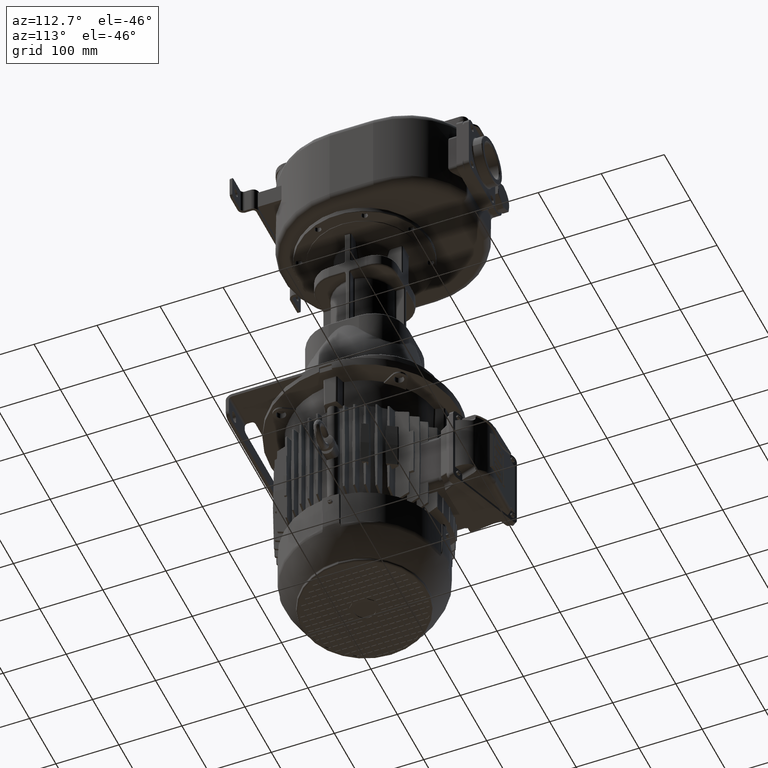
[diagram: clean part render]
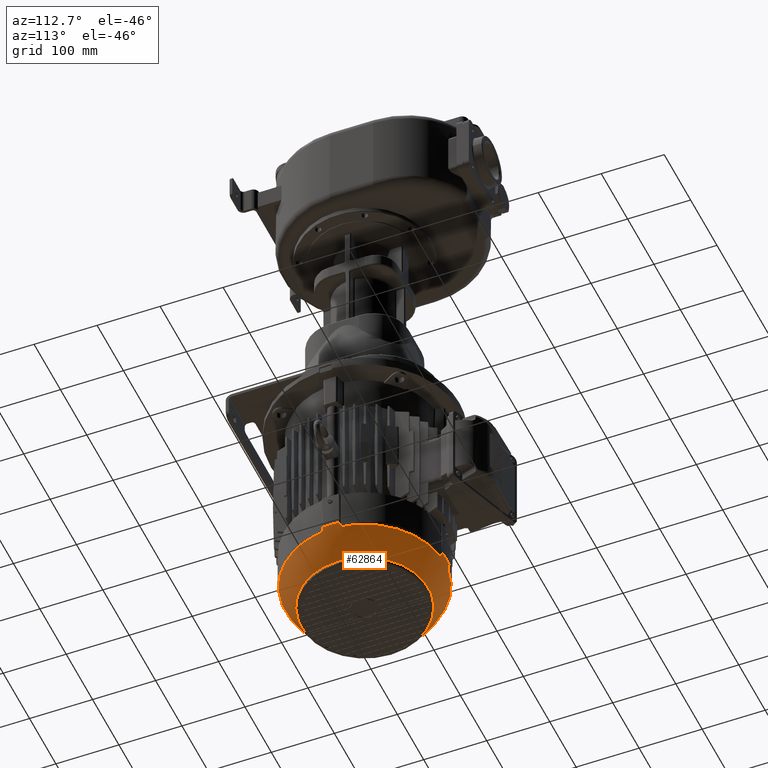
[diagram: same view with one face highlighted and labeled with its STEP entity id]
A machine part, auxiliary view. The second image highlights one B-rep face of the part: STEP entity #62864.
In plain terms, the highlighted spherical surface has radius 134.5 mm.
Its self-contained STEP definition (entity closure, byte-faithful):
#9132=CARTESIAN_POINT('',(-1.282834132325E2,1.188267666692E2,
-7.744111169062E2));
#9133=CARTESIAN_POINT('',(-1.282002467554E2,1.188032779781E2,
-7.746822287054E2));
#9134=CARTESIAN_POINT('',(-1.281156932223E2,1.187736879886E2,
-7.749527179533E2));
#9135=CARTESIAN_POINT('',(-1.280296044654E2,1.187363660330E2,
-7.752224832488E2));
#9147=CARTESIAN_POINT('',(-1.280296044654E2,1.187363660330E2,
-7.752224832488E2));
#9149=CARTESIAN_POINT('',(1.488929890106E1,6.307848742192E0,-7.816978132397E2));
#9150=CARTESIAN_POINT('',(1.475797575334E1,6.143682761572E0,-7.812872636904E2));
#9151=CARTESIAN_POINT('',(1.451431108738E1,5.837981104545E0,-7.805084317613E2));
#9152=CARTESIAN_POINT('',(1.420756427111E1,5.445937576495E0,-7.794765120899E2));
#9153=CARTESIAN_POINT('',(1.395436023710E1,5.108421879896E0,-7.785598535197E2));
#9154=CARTESIAN_POINT('',(1.374997824913E1,4.820240011737E0,-7.777539341787E2));
#9155=CARTESIAN_POINT('',(1.358631401536E1,4.571649370385E0,-7.770394914968E2));
#9156=CARTESIAN_POINT('',(1.345382668842E1,4.351181484607E0,-7.763893116339E2));
#9157=CARTESIAN_POINT('',(1.334646183621E1,4.151497309552E0,-7.757856018551E2));
#9158=CARTESIAN_POINT('',(1.328900516829E1,4.028918070158E0,-7.754058678131E2));
#9159=CARTESIAN_POINT('',(1.326363396698E1,3.970395534640E0,-7.752224832489E2));
#9161=CARTESIAN_POINT('',(4.014429639455E-14,1.32E2,-7.816978132150E2));
#9162=DIRECTION('',(0.E0,0.E0,-1.E0));
#9163=DIRECTION('',(9.930567840818E-1,-1.176359791441E-1,0.E0));
#9164=AXIS2_PLACEMENT_3D('',#9161,#9162,#9163);
#9166=CARTESIAN_POINT('',(1.280296044653E2,1.187363660330E2,-7.752224832490E2));
#9167=CARTESIAN_POINT('',(1.279813170097E2,1.187154320332E2,-7.753737954563E2));
#9168=CARTESIAN_POINT('',(1.278801050993E2,1.186686158745E2,-7.756879693491E2));
#9169=CARTESIAN_POINT('',(1.277151793851E2,1.185826955100E2,-7.761896229194E2));
#9170=CARTESIAN_POINT('',(1.275327307181E2,1.184775384041E2,-7.767330497952E2));
#9171=CARTESIAN_POINT('',(1.273269363894E2,1.183481157717E2,-7.773326205179E2));
#9172=CARTESIAN_POINT('',(1.270894901880E2,1.181870991755E2,-7.780082239755E2));
#9173=CARTESIAN_POINT('',(1.268139180149E2,1.179881589472E2,-7.787725362873E2));
#9174=CARTESIAN_POINT('',(1.264955331740E2,1.177470593127E2,-7.796318863222E2));
#9175=CARTESIAN_POINT('',(1.261281420352E2,1.174586476620E2,-7.805951826286E2));
#9176=CARTESIAN_POINT('',(1.258441381559E2,1.172322682235E2,-7.813177169736E2));
#9177=CARTESIAN_POINT('',(1.256921512578E2,1.171107010989E2,-7.816978132398E2));
#9179=CARTESIAN_POINT('',(3.941865825128E-14,1.32E2,-7.744111169063E2));
#9180=DIRECTION('',(0.E0,0.E0,-1.E0));
#9181=DIRECTION('',(9.947688696105E-1,1.021513389720E-1,0.E0));
#9182=AXIS2_PLACEMENT_3D('',#9179,#9180,#9181);
#9184=CARTESIAN_POINT('',(1.256921512578E2,1.468892989011E2,-7.816978132398E2));
#9185=CARTESIAN_POINT('',(1.258441381540E2,1.467677317780E2,-7.813177169783E2));
#9186=CARTESIAN_POINT('',(1.261281420365E2,1.465413523371E2,-7.805951826247E2));
#9187=CARTESIAN_POINT('',(1.264955331601E2,1.462529406977E2,-7.796318863600E2));
#9188=CARTESIAN_POINT('',(1.268139180869E2,1.460118409981E2,-7.787725360931E2));
#9189=CARTESIAN_POINT('',(1.270894903753E2,1.458129006906E2,-7.780082234535E2));
#9190=CARTESIAN_POINT('',(1.273269367100E2,1.456518840173E2,-7.773326195964E2));
#9191=CARTESIAN_POINT('',(1.275327309685E2,1.455224614460E2,-7.767330490559E2));
#9192=CARTESIAN_POINT('',(1.277151795381E2,1.454173044070E2,-7.761896224571E2));
#9193=CARTESIAN_POINT('',(1.278801051624E2,1.453313840939E2,-7.756879691543E2));
#9194=CARTESIAN_POINT('',(1.279813170287E2,1.452845679587E2,-7.753737953964E2));
#9195=CARTESIAN_POINT('',(1.280296044653E2,1.452636339670E2,-7.752224832490E2));
#9197=CARTESIAN_POINT('',(4.014429639455E-14,1.32E2,-7.816978132150E2));
#9198=DIRECTION('',(0.E0,0.E0,-1.E0));
#9199=DIRECTION('',(1.176359791437E-1,9.930567840818E-1,0.E0));
#9200=AXIS2_PLACEMENT_3D('',#9197,#9198,#9199);
#9202=CARTESIAN_POINT('',(1.326363396698E1,2.600296044654E2,-7.752224832489E2));
#9203=CARTESIAN_POINT('',(1.328900516330E1,2.599710819407E2,-7.754058677791E2));
#9204=CARTESIAN_POINT('',(1.334646181830E1,2.598485027306E2,-7.757856017313E2));
#9205=CARTESIAN_POINT('',(1.345382665285E1,2.596488185812E2,-7.763893114353E2));
#9206=CARTESIAN_POINT('',(1.358631389223E1,2.594283508288E2,-7.770394909139E2));
#9207=CARTESIAN_POINT('',(1.374997807424E1,2.591797602417E2,-7.777539334621E2));
#9208=CARTESIAN_POINT('',(1.395436013330E1,2.588915782596E2,-7.785598531386E2));
#9209=CARTESIAN_POINT('',(1.420756424192E1,2.585540624593E2,-7.794765119984E2));
#9210=CARTESIAN_POINT('',(1.451431117841E1,2.581620187811E2,-7.805084320585E2));
#9211=CARTESIAN_POINT('',(1.475797579623E1,2.578563171824E2,-7.812872638311E2));
#9212=CARTESIAN_POINT('',(1.488929890106E1,2.576921512578E2,-7.816978132397E2));
#9214=CARTESIAN_POINT('',(3.941865825128E-14,1.32E2,-7.744111169063E2));
#9215=DIRECTION('',(0.E0,0.E0,1.E0));
#9216=DIRECTION('',(1.021513389717E-1,9.947688696106E-1,0.E0));
#9217=AXIS2_PLACEMENT_3D('',#9214,#9215,#9216);
#9219=CARTESIAN_POINT('',(-1.488929890108E1,2.576921512578E2,
-7.816978132397E2));
#9220=CARTESIAN_POINT('',(-1.475797575318E1,2.578563172385E2,
-7.812872636901E2));
#9221=CARTESIAN_POINT('',(-1.451431108706E1,2.581620188957E2,
-7.805084317606E2));
#9222=CARTESIAN_POINT('',(-1.420756427082E1,2.585540624239E2,
-7.794765120889E2));
#9223=CARTESIAN_POINT('',(-1.395436023693E1,2.588915781205E2,
-7.785598535187E2));
#9224=CARTESIAN_POINT('',(-1.374997824896E1,2.591797599887E2,
-7.777539341774E2));
#9225=CARTESIAN_POINT('',(-1.358631401519E1,2.594283506301E2,
-7.770394914954E2));
#9226=CARTESIAN_POINT('',(-1.345382668830E1,2.596488185158E2,
-7.763893116327E2));
#9227=CARTESIAN_POINT('',(-1.334646183621E1,2.598485026907E2,
-7.757856018544E2));
#9228=CARTESIAN_POINT('',(-1.328900516828E1,2.599710819299E2,
-7.754058678129E2));
#9229=CARTESIAN_POINT('',(-1.326363396700E1,2.600296044654E2,
-7.752224832489E2));
#9231=CARTESIAN_POINT('',(4.014429639455E-14,1.32E2,-7.816978132150E2));
#9232=DIRECTION('',(0.E0,0.E0,-1.E0));
#9233=DIRECTION('',(-9.930567840818E-1,1.176359791440E-1,0.E0));
#9234=AXIS2_PLACEMENT_3D('',#9231,#9232,#9233);
#9236=CARTESIAN_POINT('',(-1.280296044654E2,1.452636339670E2,
-7.752224832488E2));
#9237=CARTESIAN_POINT('',(-1.279813170097E2,1.452845679668E2,
-7.753737954560E2));
#9238=CARTESIAN_POINT('',(-1.278801050994E2,1.453313841255E2,
-7.756879693489E2));
#9239=CARTESIAN_POINT('',(-1.277151793852E2,1.454173044900E2,
-7.761896229191E2));
#9240=CARTESIAN_POINT('',(-1.275327307182E2,1.455224615959E2,
-7.767330497949E2));
#9241=CARTESIAN_POINT('',(-1.273269363895E2,1.456518842283E2,
-7.773326205176E2));
#9242=CARTESIAN_POINT('',(-1.270894901881E2,1.458129008245E2,
-7.780082239752E2));
#9243=CARTESIAN_POINT('',(-1.268139180150E2,1.460118410527E2,
-7.787725362871E2));
#9244=CARTESIAN_POINT('',(-1.264955331741E2,1.462529406873E2,
-7.796318863219E2));
#9245=CARTESIAN_POINT('',(-1.261281420353E2,1.465413523380E2,
-7.805951826284E2));
#9246=CARTESIAN_POINT('',(-1.258441381559E2,1.467677317765E2,
-7.813177169734E2));
#9247=CARTESIAN_POINT('',(-1.256921512578E2,1.468892989011E2,
-7.816978132397E2));
#9249=CARTESIAN_POINT('',(3.941865825128E-14,1.32E2,-7.744111169063E2));
#9250=DIRECTION('',(0.E0,0.E0,-1.E0));
#9251=DIRECTION('',(-9.947688696105E-1,-1.021513389720E-1,0.E0));
#9252=AXIS2_PLACEMENT_3D('',#9249,#9250,#9251);
#9254=CARTESIAN_POINT('',(-1.256921512578E2,1.171107010989E2,
-7.816978132397E2));
#9255=CARTESIAN_POINT('',(-1.258441381540E2,1.172322682222E2,
-7.813177169780E2));
#9256=CARTESIAN_POINT('',(-1.261281420368E2,1.174586476631E2,
-7.805951826242E2));
#9257=CARTESIAN_POINT('',(-1.264955331604E2,1.177470593025E2,
-7.796318863593E2));
#9258=CARTESIAN_POINT('',(-1.268139180871E2,1.179881590020E2,
-7.787725360925E2));
#9259=CARTESIAN_POINT('',(-1.270894903755E2,1.181870993095E2,
-7.780082234529E2));
#9260=CARTESIAN_POINT('',(-1.273269367102E2,1.183481159828E2,
-7.773326195957E2));
#9261=CARTESIAN_POINT('',(-1.275327309687E2,1.184775385541E2,
-7.767330490551E2));
#9262=CARTESIAN_POINT('',(-1.277151795384E2,1.185826955930E2,
-7.761896224564E2));
#9263=CARTESIAN_POINT('',(-1.278801051626E2,1.186686159062E2,
-7.756879691538E2));
#9264=CARTESIAN_POINT('',(-1.279813170288E2,1.187154320413E2,
-7.753737953961E2));
#9265=CARTESIAN_POINT('',(-1.280296044654E2,1.187363660330E2,
-7.752224832488E2));
#9267=CARTESIAN_POINT('',(4.014429639455E-14,1.32E2,-7.816978132150E2));
#9268=DIRECTION('',(0.E0,0.E0,-1.E0));
#9269=DIRECTION('',(-1.176359791443E-1,-9.930567840817E-1,0.E0));
#9270=AXIS2_PLACEMENT_3D('',#9267,#9268,#9269);
#9272=CARTESIAN_POINT('',(-1.326363396700E1,3.970395534640E0,
-7.752224832489E2));
#9273=CARTESIAN_POINT('',(-1.328900516334E1,4.028918059312E0,
-7.754058677792E2));
#9274=CARTESIAN_POINT('',(-1.334646181843E1,4.151497269526E0,
-7.757856017315E2));
#9275=CARTESIAN_POINT('',(-1.345382665299E1,4.351181418932E0,
-7.763893114357E2));
#9276=CARTESIAN_POINT('',(-1.358631389241E1,4.571649171406E0,
-7.770394909144E2));
#9277=CARTESIAN_POINT('',(-1.374997807441E1,4.820239758495E0,
-7.777539334625E2));
#9278=CARTESIAN_POINT('',(-1.395436013347E1,5.108421740531E0,
-7.785598531389E2));
#9279=CARTESIAN_POINT('',(-1.420756424213E1,5.445937540809E0,
-7.794765119987E2));
#9280=CARTESIAN_POINT('',(-1.451431117868E1,5.837981218949E0,
-7.805084320586E2));
#9281=CARTESIAN_POINT('',(-1.475797579632E1,6.143682817626E0,
-7.812872638311E2));
#9282=CARTESIAN_POINT('',(-1.488929890108E1,6.307848742192E0,
-7.816978132397E2));
#9284=CARTESIAN_POINT('',(4.443118763415E-14,1.32E2,-8.247458184240E2));
#9285=DIRECTION('',(0.E0,0.E0,-1.E0));
#9286=DIRECTION('',(-1.E0,0.E0,0.E0));
#9287=AXIS2_PLACEMENT_3D('',#9284,#9285,#9286);
#9289=CARTESIAN_POINT('',(4.443118763415E-14,1.32E2,-8.247458184240E2));
#9290=DIRECTION('',(0.E0,0.E0,-1.E0));
#9291=DIRECTION('',(1.E0,0.E0,0.E0));
#9292=AXIS2_PLACEMENT_3D('',#9289,#9290,#9291);
#9294=CARTESIAN_POINT('',(3.941865825128E-14,1.32E2,-7.744111169063E2));
#9295=DIRECTION('',(0.E0,0.E0,-1.E0));
#9296=DIRECTION('',(1.021513389720E-1,-9.947688696105E-1,0.E0));
#9297=AXIS2_PLACEMENT_3D('',#9294,#9295,#9296);
#9326=CARTESIAN_POINT('',(1.317323333079E1,3.716586767509E0,-7.744111169063E2));
#9621=CARTESIAN_POINT('',(1.317323333079E1,3.716586767509E0,-7.744111169063E2));
#9622=CARTESIAN_POINT('',(1.319672202192E1,3.799753244630E0,-7.746822287055E2));
#9623=CARTESIAN_POINT('',(1.322631201142E1,3.884306777671E0,-7.749527179534E2));
#9624=CARTESIAN_POINT('',(1.326363396698E1,3.970395534640E0,-7.752224832489E2));
#9636=CARTESIAN_POINT('',(1.326363396698E1,3.970395534640E0,-7.752224832489E2));
#9662=CARTESIAN_POINT('',(1.256921512578E2,1.171107010989E2,-7.816978132398E2));
#9680=CARTESIAN_POINT('',(1.488929890106E1,6.307848742192E0,-7.816978132397E2));
#9833=CARTESIAN_POINT('',(1.282834132325E2,1.451732333308E2,-7.744111169064E2));
#9834=CARTESIAN_POINT('',(1.282002467554E2,1.451967220219E2,-7.746822287056E2));
#9835=CARTESIAN_POINT('',(1.281156932223E2,1.452263120114E2,-7.749527179535E2));
#9836=CARTESIAN_POINT('',(1.280296044653E2,1.452636339670E2,-7.752224832490E2));
#9892=CARTESIAN_POINT('',(1.256921512578E2,1.468892989011E2,-7.816978132398E2));
#9921=CARTESIAN_POINT('',(1.317323333079E1,2.602834132325E2,-7.744111169063E2));
#10087=CARTESIAN_POINT('',(-1.317323333081E1,2.602834132325E2,
-7.744111169063E2));
#10088=CARTESIAN_POINT('',(-1.319672202194E1,2.602002467554E2,
-7.746822287055E2));
#10089=CARTESIAN_POINT('',(-1.322631201145E1,2.601156932223E2,
-7.749527179534E2));
#10090=CARTESIAN_POINT('',(-1.326363396700E1,2.600296044654E2,
-7.752224832489E2));
#10096=CARTESIAN_POINT('',(-1.317323333081E1,2.602834132325E2,
-7.744111169063E2));
#10102=CARTESIAN_POINT('',(-1.326363396700E1,2.600296044654E2,
-7.752224832489E2));
#10116=CARTESIAN_POINT('',(-1.488929890108E1,2.576921512578E2,
-7.816978132397E2));
#10138=CARTESIAN_POINT('',(-1.256921512578E2,1.468892989011E2,
-7.816978132397E2));
#10249=CARTESIAN_POINT('',(-1.282834132325E2,1.188267666692E2,
-7.744111169062E2));
#10267=CARTESIAN_POINT('',(-1.282834132325E2,1.451732333308E2,
-7.744111169062E2));
#10277=CARTESIAN_POINT('',(-1.280296044654E2,1.452636339670E2,
-7.752224832488E2));
#10278=CARTESIAN_POINT('',(-1.281156932223E2,1.452263120114E2,
-7.749527179533E2));
#10279=CARTESIAN_POINT('',(-1.282002467554E2,1.451967220219E2,
-7.746822287054E2));
#10280=CARTESIAN_POINT('',(-1.282834132325E2,1.451732333308E2,
-7.744111169062E2));
#10286=CARTESIAN_POINT('',(-1.280296044654E2,1.452636339670E2,
-7.752224832488E2));
#10777=CARTESIAN_POINT('',(1.326363396698E1,2.600296044654E2,
-7.752224832489E2));
#10778=CARTESIAN_POINT('',(1.322631201142E1,2.601156932223E2,
-7.749527179534E2));
#10779=CARTESIAN_POINT('',(1.319672202192E1,2.602002467554E2,
-7.746822287055E2));
#10780=CARTESIAN_POINT('',(1.317323333079E1,2.602834132325E2,
-7.744111169063E2));
#10786=CARTESIAN_POINT('',(1.326363396698E1,2.600296044654E2,
-7.752224832489E2));
#10793=CARTESIAN_POINT('',(1.488929890106E1,2.576921512578E2,
-7.816978132397E2));
#10832=CARTESIAN_POINT('',(1.282834132325E2,1.451732333308E2,
-7.744111169064E2));
#10850=CARTESIAN_POINT('',(1.282834132325E2,1.188267666692E2,
-7.744111169064E2));
#11314=CARTESIAN_POINT('',(1.280296044653E2,1.187363660330E2,
-7.752224832490E2));
#11315=CARTESIAN_POINT('',(1.281156932223E2,1.187736879886E2,
-7.749527179535E2));
#11316=CARTESIAN_POINT('',(1.282002467554E2,1.188032779781E2,
-7.746822287056E2));
#11317=CARTESIAN_POINT('',(1.282834132325E2,1.188267666692E2,
-7.744111169064E2));
#11685=CARTESIAN_POINT('',(-1.326363396700E1,3.970395534640E0,
-7.752224832489E2));
#11686=CARTESIAN_POINT('',(-1.322631201145E1,3.884306777671E0,
-7.749527179534E2));
#11687=CARTESIAN_POINT('',(-1.319672202194E1,3.799753244630E0,
-7.746822287055E2));
#11688=CARTESIAN_POINT('',(-1.317323333081E1,3.716586767509E0,
-7.744111169063E2));
#11720=CARTESIAN_POINT('',(-1.488929890108E1,6.307848742192E0,
-7.816978132397E2));
#11738=CARTESIAN_POINT('',(-1.256921512578E2,1.171107010989E2,
-7.816978132397E2));
#48522=VERTEX_POINT('',#11685);
#48523=VERTEX_POINT('',#11688);
#49800=VERTEX_POINT('',#10102);
#49805=VERTEX_POINT('',#10116);
#50137=VERTEX_POINT('',#10096);
#50461=VERTEX_POINT('',#10793);
#50470=VERTEX_POINT('',#9921);
#50475=VERTEX_POINT('',#10786);
#51009=VERTEX_POINT('',#11720);
#51011=VERTEX_POINT('',#10267);
#51013=VERTEX_POINT('',#10249);
#51015=VERTEX_POINT('',#9326);
#51016=VERTEX_POINT('',#10832);
#51022=VERTEX_POINT('',#9680);
#51031=VERTEX_POINT('',#10850);
#51032=VERTEX_POINT('',#9892);
#51034=VERTEX_POINT('',#10286);
#51035=VERTEX_POINT('',#9662);
#51040=VERTEX_POINT('',#10138);
#51045=VERTEX_POINT('',#11738);
#51091=VERTEX_POINT('',#9636);
#51110=VERTEX_POINT('',#9147);
#51190=CARTESIAN_POINT('',(1.012418181818E2,1.32E2,-8.247458184240E2));
#51192=VERTEX_POINT('',#51190);
#51203=VERTEX_POINT('',#9166);
#51204=VERTEX_POINT('',#9195);
#51230=CARTESIAN_POINT('',(-1.012418181818E2,1.32E2,-8.247458184240E2));
#51231=VERTEX_POINT('',#51230);
#62805=CARTESIAN_POINT('',(3.561345350746E-14,1.32E2,-7.362000999999E2));
#62806=DIRECTION('',(1.E0,0.E0,-9.162312627171E-13));
#62807=DIRECTION('',(0.E0,1.E0,0.E0));
#62808=AXIS2_PLACEMENT_3D('',#62805,#62806,#62807);
#62809=SPHERICAL_SURFACE('',#62808,1.345E2);
#62811=ORIENTED_EDGE('',*,*,#62810,.F.);
#62813=ORIENTED_EDGE('',*,*,#62812,.T.);
#62815=ORIENTED_EDGE('',*,*,#62814,.F.);
#62817=ORIENTED_EDGE('',*,*,#62816,.F.);
#62819=ORIENTED_EDGE('',*,*,#62818,.F.);
#62821=ORIENTED_EDGE('',*,*,#62820,.T.);
#62823=ORIENTED_EDGE('',*,*,#62822,.F.);
#62825=ORIENTED_EDGE('',*,*,#62824,.T.);
#62827=ORIENTED_EDGE('',*,*,#62826,.F.);
#62829=ORIENTED_EDGE('',*,*,#62828,.F.);
#62831=ORIENTED_EDGE('',*,*,#62830,.F.);
#62833=ORIENTED_EDGE('',*,*,#62832,.T.);
#62835=ORIENTED_EDGE('',*,*,#62834,.T.);
#62837=ORIENTED_EDGE('',*,*,#62836,.T.);
#62839=ORIENTED_EDGE('',*,*,#62838,.F.);
#62841=ORIENTED_EDGE('',*,*,#62840,.F.);
#62843=ORIENTED_EDGE('',*,*,#62842,.F.);
#62845=ORIENTED_EDGE('',*,*,#62844,.T.);
#62847=ORIENTED_EDGE('',*,*,#62846,.F.);
#62848=ORIENTED_EDGE('',*,*,#62763,.T.);
#62849=ORIENTED_EDGE('',*,*,#62797,.F.);
#62851=ORIENTED_EDGE('',*,*,#62850,.F.);
#62853=ORIENTED_EDGE('',*,*,#62852,.F.);
#62855=ORIENTED_EDGE('',*,*,#62854,.T.);
#62856=EDGE_LOOP('',(#62811,#62813,#62815,#62817,#62819,#62821,#62823,#62825,
#62827,#62829,#62831,#62833,#62835,#62837,#62839,#62841,#62843,#62845,#62847,
#62848,#62849,#62851,#62853,#62855));
#62857=FACE_OUTER_BOUND('',#62856,.F.);
#62859=ORIENTED_EDGE('',*,*,#62858,.T.);
#62861=ORIENTED_EDGE('',*,*,#62860,.T.);
#62862=EDGE_LOOP('',(#62859,#62861));
#62863=FACE_BOUND('',#62862,.F.);
#62864=ADVANCED_FACE('',(#62857,#62863),#62809,.T.);
#9136=B_SPLINE_CURVE_WITH_KNOTS('',3,(#9132,#9133,#9134,#9135),.UNSPECIFIED.,
.F.,.F.,(4,4),(0.E0,1.E0),.UNSPECIFIED.);
#9160=B_SPLINE_CURVE_WITH_KNOTS('',3,(#9149,#9150,#9151,#9152,#9153,#9154,#9155,
#9156,#9157,#9158,#9159),.UNSPECIFIED.,.F.,.F.,(4,1,1,1,1,1,1,1,4),(0.E0,
1.25E-1,2.5E-1,3.75E-1,5.E-1,6.25E-1,7.5E-1,8.75E-1,1.E0),.UNSPECIFIED.);
#9165=CIRCLE('',#9164,1.265709606987E2);
#9178=B_SPLINE_CURVE_WITH_KNOTS('',3,(#9166,#9167,#9168,#9169,#9170,#9171,#9172,
#9173,#9174,#9175,#9176,#9177),.UNSPECIFIED.,.F.,.F.,(4,1,1,1,1,1,1,1,1,4),
(0.E0,1.111111111111E-1,2.222222222222E-1,3.333333333333E-1,4.444444444444E-1,
5.555555555556E-1,6.666666666667E-1,7.777777777778E-1,8.888888888889E-1,1.E0),
.UNSPECIFIED.);
#9183=CIRCLE('',#9182,1.289580093944E2);
#9196=B_SPLINE_CURVE_WITH_KNOTS('',3,(#9184,#9185,#9186,#9187,#9188,#9189,#9190,
#9191,#9192,#9193,#9194,#9195),.UNSPECIFIED.,.F.,.F.,(4,1,1,1,1,1,1,1,1,4),
(0.E0,1.111111111111E-1,2.222222222222E-1,3.333333333333E-1,4.444444444444E-1,
5.555555555556E-1,6.666666666667E-1,7.777777777778E-1,8.888888888889E-1,1.E0),
.UNSPECIFIED.);
#9201=CIRCLE('',#9200,1.265709606987E2);
#9213=B_SPLINE_CURVE_WITH_KNOTS('',3,(#9202,#9203,#9204,#9205,#9206,#9207,#9208,
#9209,#9210,#9211,#9212),.UNSPECIFIED.,.F.,.F.,(4,1,1,1,1,1,1,1,4),(0.E0,
1.25E-1,2.5E-1,3.75E-1,5.E-1,6.25E-1,7.5E-1,8.75E-1,1.E0),.UNSPECIFIED.);
#9218=CIRCLE('',#9217,1.289580093944E2);
#9230=B_SPLINE_CURVE_WITH_KNOTS('',3,(#9219,#9220,#9221,#9222,#9223,#9224,#9225,
#9226,#9227,#9228,#9229),.UNSPECIFIED.,.F.,.F.,(4,1,1,1,1,1,1,1,4),(0.E0,
1.25E-1,2.5E-1,3.75E-1,5.E-1,6.25E-1,7.5E-1,8.75E-1,1.E0),.UNSPECIFIED.);
#9235=CIRCLE('',#9234,1.265709606987E2);
#9248=B_SPLINE_CURVE_WITH_KNOTS('',3,(#9236,#9237,#9238,#9239,#9240,#9241,#9242,
#9243,#9244,#9245,#9246,#9247),.UNSPECIFIED.,.F.,.F.,(4,1,1,1,1,1,1,1,1,4),
(0.E0,1.111111111111E-1,2.222222222222E-1,3.333333333333E-1,4.444444444444E-1,
5.555555555556E-1,6.666666666667E-1,7.777777777778E-1,8.888888888889E-1,1.E0),
.UNSPECIFIED.);
#9253=CIRCLE('',#9252,1.289580093944E2);
#9266=B_SPLINE_CURVE_WITH_KNOTS('',3,(#9254,#9255,#9256,#9257,#9258,#9259,#9260,
#9261,#9262,#9263,#9264,#9265),.UNSPECIFIED.,.F.,.F.,(4,1,1,1,1,1,1,1,1,4),
(0.E0,1.111111111111E-1,2.222222222222E-1,3.333333333333E-1,4.444444444444E-1,
5.555555555556E-1,6.666666666667E-1,7.777777777778E-1,8.888888888889E-1,1.E0),
.UNSPECIFIED.);
#9271=CIRCLE('',#9270,1.265709606987E2);
#9283=B_SPLINE_CURVE_WITH_KNOTS('',3,(#9272,#9273,#9274,#9275,#9276,#9277,#9278,
#9279,#9280,#9281,#9282),.UNSPECIFIED.,.F.,.F.,(4,1,1,1,1,1,1,1,4),(0.E0,
1.25E-1,2.5E-1,3.75E-1,5.E-1,6.25E-1,7.5E-1,8.75E-1,1.E0),.UNSPECIFIED.);
#9288=CIRCLE('',#9287,1.012418181818E2);
#9293=CIRCLE('',#9292,1.012418181818E2);
#9298=CIRCLE('',#9297,1.289580093944E2);
#9625=B_SPLINE_CURVE_WITH_KNOTS('',3,(#9621,#9622,#9623,#9624),.UNSPECIFIED.,
.F.,.F.,(4,4),(0.E0,1.E0),.UNSPECIFIED.);
#9837=B_SPLINE_CURVE_WITH_KNOTS('',3,(#9833,#9834,#9835,#9836),.UNSPECIFIED.,
.F.,.F.,(4,4),(0.E0,1.E0),.UNSPECIFIED.);
#10091=B_SPLINE_CURVE_WITH_KNOTS('',3,(#10087,#10088,#10089,#10090),
.UNSPECIFIED.,.F.,.F.,(4,4),(0.E0,1.E0),.UNSPECIFIED.);
#10281=B_SPLINE_CURVE_WITH_KNOTS('',3,(#10277,#10278,#10279,#10280),
.UNSPECIFIED.,.F.,.F.,(4,4),(0.E0,1.E0),.UNSPECIFIED.);
#10781=B_SPLINE_CURVE_WITH_KNOTS('',3,(#10777,#10778,#10779,#10780),
.UNSPECIFIED.,.F.,.F.,(4,4),(0.E0,1.E0),.UNSPECIFIED.);
#11318=B_SPLINE_CURVE_WITH_KNOTS('',3,(#11314,#11315,#11316,#11317),
.UNSPECIFIED.,.F.,.F.,(4,4),(0.E0,1.E0),.UNSPECIFIED.);
#11689=B_SPLINE_CURVE_WITH_KNOTS('',3,(#11685,#11686,#11687,#11688),
.UNSPECIFIED.,.F.,.F.,(4,4),(0.E0,1.E0),.UNSPECIFIED.);
#62763=EDGE_CURVE('',#51013,#51110,#9136,.T.);
#62797=EDGE_CURVE('',#51045,#51110,#9266,.T.);
#62810=EDGE_CURVE('',#51015,#48523,#9298,.T.);
#62812=EDGE_CURVE('',#51015,#51091,#9625,.T.);
#62814=EDGE_CURVE('',#51022,#51091,#9160,.T.);
#62816=EDGE_CURVE('',#51035,#51022,#9165,.T.);
#62818=EDGE_CURVE('',#51203,#51035,#9178,.T.);
#62820=EDGE_CURVE('',#51203,#51031,#11318,.T.);
#62822=EDGE_CURVE('',#51016,#51031,#9183,.T.);
#62824=EDGE_CURVE('',#51016,#51204,#9837,.T.);
#62826=EDGE_CURVE('',#51032,#51204,#9196,.T.);
#62828=EDGE_CURVE('',#50461,#51032,#9201,.T.);
#62830=EDGE_CURVE('',#50475,#50461,#9213,.T.);
#62832=EDGE_CURVE('',#50475,#50470,#10781,.T.);
#62834=EDGE_CURVE('',#50470,#50137,#9218,.T.);
#62836=EDGE_CURVE('',#50137,#49800,#10091,.T.);
#62838=EDGE_CURVE('',#49805,#49800,#9230,.T.);
#62840=EDGE_CURVE('',#51040,#49805,#9235,.T.);
#62842=EDGE_CURVE('',#51034,#51040,#9248,.T.);
#62844=EDGE_CURVE('',#51034,#51011,#10281,.T.);
#62846=EDGE_CURVE('',#51013,#51011,#9253,.T.);
#62850=EDGE_CURVE('',#51009,#51045,#9271,.T.);
#62852=EDGE_CURVE('',#48522,#51009,#9283,.T.);
#62854=EDGE_CURVE('',#48522,#48523,#11689,.T.);
#62858=EDGE_CURVE('',#51231,#51192,#9288,.T.);
#62860=EDGE_CURVE('',#51192,#51231,#9293,.T.);